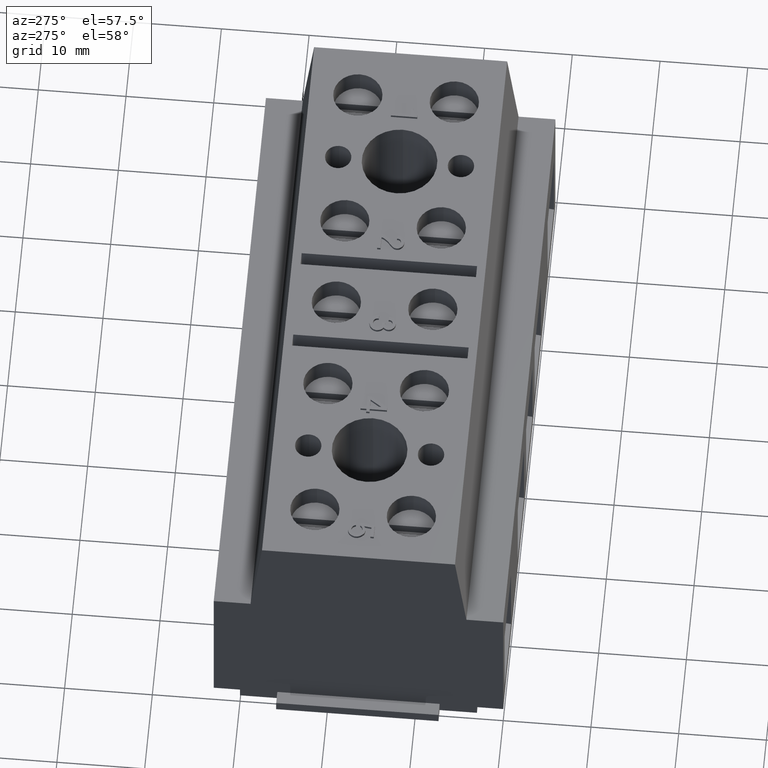
[diagram: clean part render]
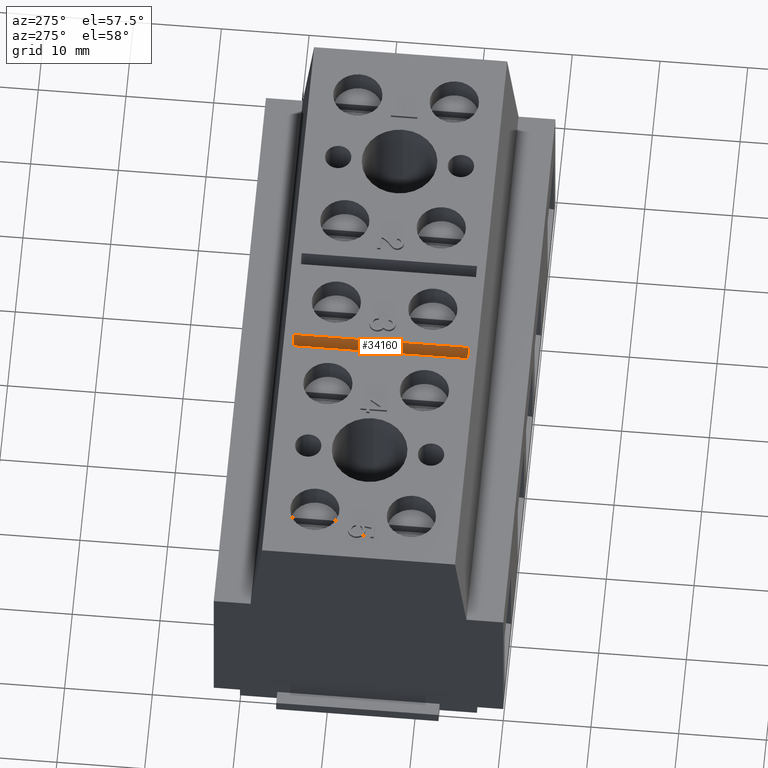
[diagram: same view with one face highlighted and labeled with its STEP entity id]
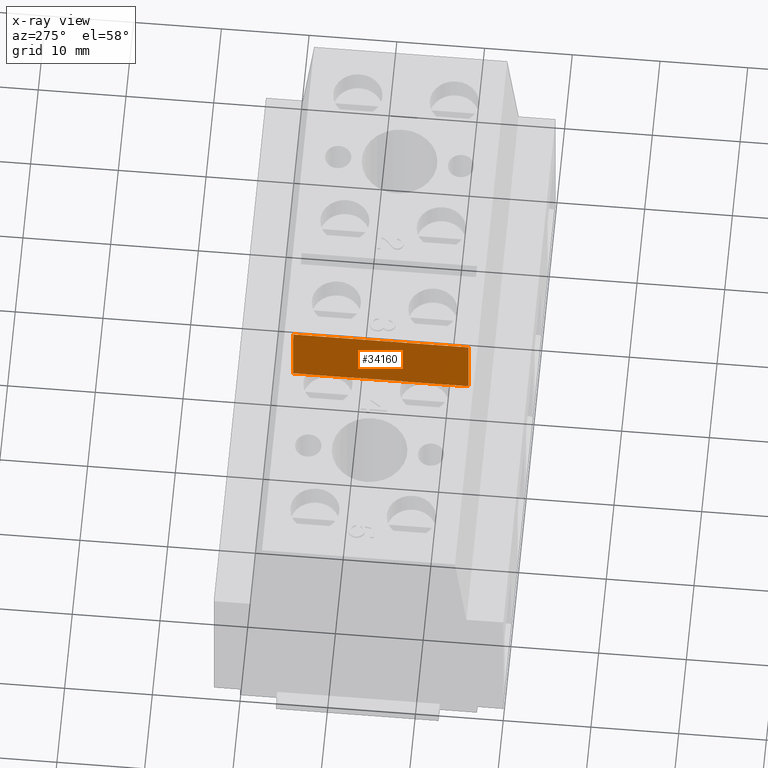
[diagram: x-ray of the same camera — body ghosted, the highlighted face saturated]
A machine part, auxiliary view. The second image highlights one B-rep face of the part: STEP entity #34160.
The next image is the same camera in x-ray: the body ghosted, the highlighted face saturated — about 1% of this face is hidden behind the body in this view.
In plain terms, the highlighted planar face has unit normal (0.9998, -0, -0.0175).
Its self-contained STEP definition (entity closure, byte-faithful):
#7100=CARTESIAN_POINT('',(70.7713182031141,-14.4158790304453,
-0.239640519425741));
#7110=VERTEX_POINT('',#7100);
#7140=CARTESIAN_POINT('',(70.7713182031141,-7.105427357601E-15,
-0.239640519425741));
#7150=DIRECTION('',(0.,1.,0.));
#7160=VECTOR('',#7150,1.);
#7170=LINE('',#7140,#7160);
#7180=CARTESIAN_POINT('',(70.7713182031141,5.58412096955471,
-0.239640519425741));
#7190=VERTEX_POINT('',#7180);
#7200=EDGE_CURVE('',#7110,#7190,#7170,.T.);
#33860=CARTESIAN_POINT('',(70.7700997643653,-14.4158790304453,
-0.239619251498269));
#33870=DIRECTION('',(-0.0174524064372835,-0.,-0.999847695156391));
#33880=DIRECTION('',(0.,-1.,0.));
#33890=AXIS2_PLACEMENT_3D('',#33860,#33870,#33880);
#33900=PLANE('',#33890);
#33910=CARTESIAN_POINT('',(0.,-14.4158790304453,0.995677434865161));
#33920=DIRECTION('',(-0.999847695156391,0.,0.0174524064372835));
#33930=VECTOR('',#33920,1.);
#33940=LINE('',#33910,#33930);
#33950=CARTESIAN_POINT('',(62.7713182031141,-14.4158790304453,
-0.100000000000001));
#33960=VERTEX_POINT('',#33950);
#33970=EDGE_CURVE('',#7110,#33960,#33940,.T.);
#33980=ORIENTED_EDGE('',*,*,#33970,.F.);
#33990=CARTESIAN_POINT('',(62.7713182031141,5.58412096955471,
-0.100000000000001));
#34000=DIRECTION('',(0.,-1.,0.));
#34010=VECTOR('',#34000,1.);
#34020=LINE('',#33990,#34010);
#34030=CARTESIAN_POINT('',(62.7713182031141,5.58412096955471,
-0.100000000000001));
#34040=VERTEX_POINT('',#34030);
#34050=EDGE_CURVE('',#34040,#33960,#34020,.T.);
#34060=ORIENTED_EDGE('',*,*,#34050,.T.);
#34070=CARTESIAN_POINT('',(0.,5.58412096955471,0.995677434865161));
#34080=DIRECTION('',(0.999847695156391,0.,-0.0174524064372835));
#34090=VECTOR('',#34080,1.);
#34100=LINE('',#34070,#34090);
#34110=EDGE_CURVE('',#34040,#7190,#34100,.T.);
#34120=ORIENTED_EDGE('',*,*,#34110,.F.);
#34130=ORIENTED_EDGE('',*,*,#7200,.T.);
#34140=EDGE_LOOP('',(#34130,#34120,#34060,#33980));
#34150=FACE_OUTER_BOUND('',#34140,.T.);
#34160=ADVANCED_FACE('',(#34150),#33900,.F.);